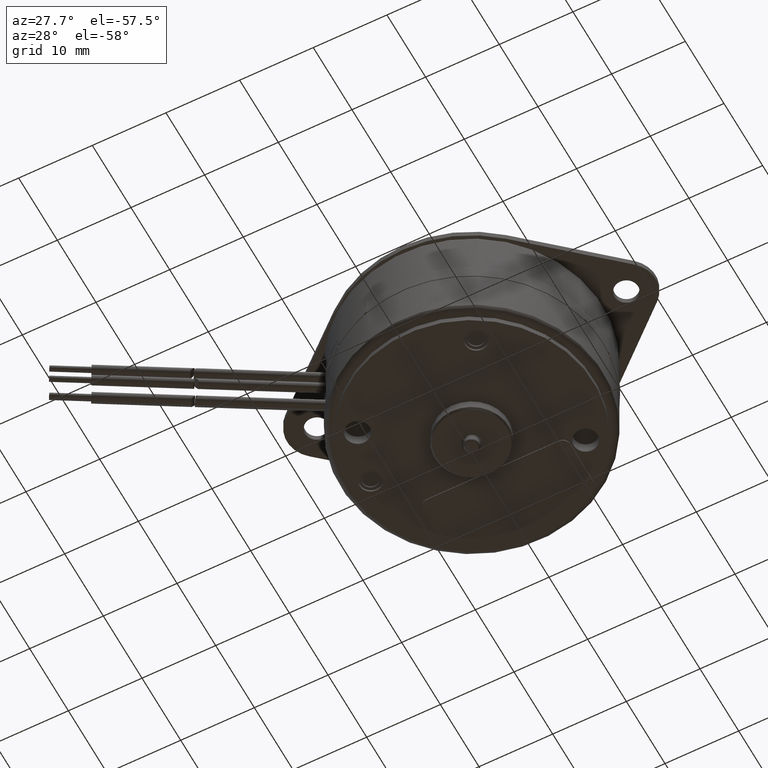
[diagram: clean part render]
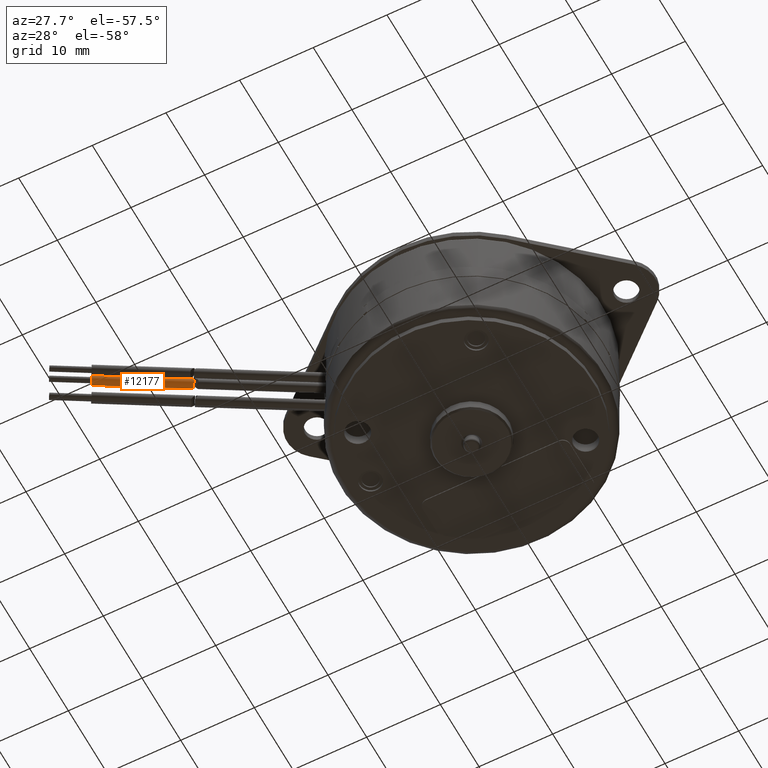
[diagram: same view with one face highlighted and labeled with its STEP entity id]
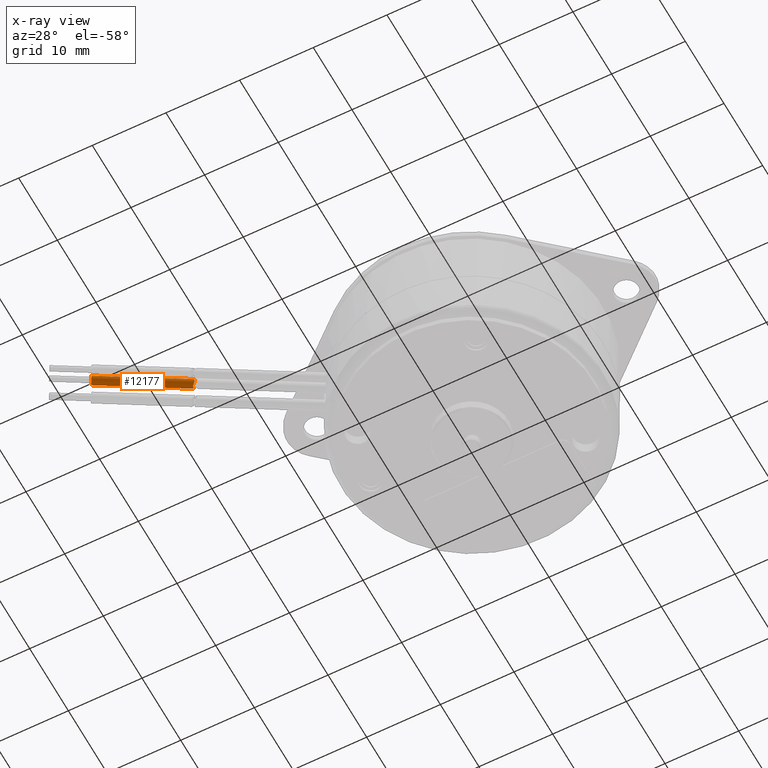
[diagram: x-ray of the same camera — body ghosted, the highlighted face saturated]
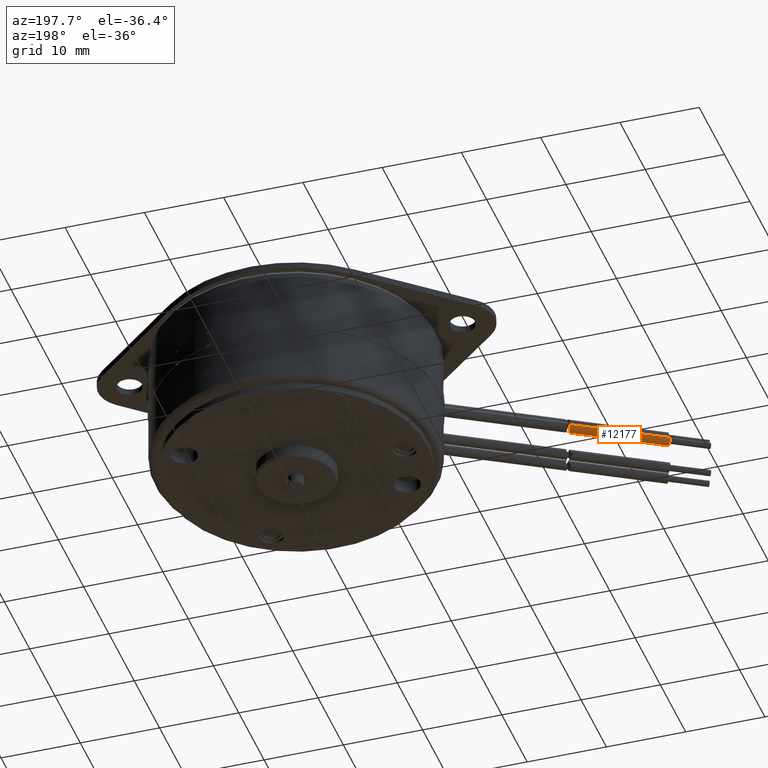
[diagram: same view with one face highlighted and labeled with its STEP entity id]
A machine part, auxiliary view. The second image highlights one B-rep face of the part: STEP entity #12177.
The next image is the same camera in x-ray: the body ghosted, the highlighted face saturated — about 0% of this face is hidden behind the body in this view.
A second angle (auxiliary view) of the same face is appended — the face is thin or edge-on in the first view.
In plain terms, the highlighted cylindrical surface (edge-blend (fillet) strip) has radius 0.635 mm, axis along (0.866, 0.5, 0).
Its self-contained STEP definition (entity closure, byte-faithful):
#11980=CARTESIAN_POINT('',(-1.574845726812E0,-8.722871870790E-1,8.E-2));
#11981=DIRECTION('',(8.660254037844E-1,5.E-1,0.E0));
#11982=DIRECTION('',(5.E-1,-8.660254037844E-1,0.E0));
#11983=AXIS2_PLACEMENT_3D('',#11980,#11981,#11982);
#11995=DIRECTION('',(8.660254090818E-1,4.999999907318E-1,-9.634992567196E-6));
#11996=VECTOR('',#11995,4.846703954332E-1);
#11997=CARTESIAN_POINT('',(-1.587345726258E0,-8.506365529432E-1,
7.999392530138E-2));
#11998=LINE('',#11997,#11996);
#12032=CARTESIAN_POINT('',(-1.142614720842E0,-6.516060069013E-1,
7.998925550445E-2));
#12034=DIRECTION('',(-8.660253995365E-1,-5.000000072649E-1,9.635126355597E-6));
#12035=VECTOR('',#12034,4.846636215850E-1);
#12036=CARTESIAN_POINT('',(-1.142614720842E0,-6.516060069013E-1,
7.998925550445E-2));
#12037=LINE('',#12036,#12035);
#12038=CARTESIAN_POINT('',(-1.167608848783E0,-6.083013597186E-1,
7.998925550572E-2));
#12039=CARTESIAN_POINT('',(-1.167121205933E0,-6.080201314773E-1,
7.924676605733E-2));
#12040=CARTESIAN_POINT('',(-1.166230749679E0,-6.075829310580E-1,
7.781021882939E-2));
#12041=CARTESIAN_POINT('',(-1.165174482928E0,-6.072760001384E-1,
7.580217718599E-2));
#12042=CARTESIAN_POINT('',(-1.164341961272E0,-6.072465598094E-1,
7.394769011116E-2));
#12043=CARTESIAN_POINT('',(-1.163680085429E0,-6.074570086726E-1,
7.217262393653E-2));
#12044=CARTESIAN_POINT('',(-1.163157152198E0,-6.078988278711E-1,
7.043360286272E-2));
#12045=CARTESIAN_POINT('',(-1.162751199284E0,-6.085914282892E-1,
6.868047226496E-2));
#12046=CARTESIAN_POINT('',(-1.162449278503E0,-6.095843629989E-1,
6.686522185302E-2));
#12047=CARTESIAN_POINT('',(-1.162243671469E0,-6.109683465297E-1,
6.494471148440E-2));
#12048=CARTESIAN_POINT('',(-1.162119582207E0,-6.128047629443E-1,
6.295109306300E-2));
#12049=CARTESIAN_POINT('',(-1.162023254286E0,-6.152247838305E-1,
6.088386119875E-2));
#12050=CARTESIAN_POINT('',(-1.161850860814E0,-6.180119538543E-1,
5.902302301249E-2));
#12051=CARTESIAN_POINT('',(-1.161531727629E0,-6.207139880364E-1,
5.759728590745E-2));
#12052=CARTESIAN_POINT('',(-1.161033450562E0,-6.233304124158E-1,
5.651050414707E-2));
#12053=CARTESIAN_POINT('',(-1.160348672459E0,-6.258223196329E-1,
5.573470004021E-2));
#12054=CARTESIAN_POINT('',(-1.159478132060E0,-6.281928313763E-1,
5.523415824201E-2));
#12055=CARTESIAN_POINT('',(-1.158424185469E0,-6.304454531062E-1,
5.498941701509E-2));
#12056=CARTESIAN_POINT('',(-1.157186472004E0,-6.325880531576E-1,
5.499009217703E-2));
#12057=CARTESIAN_POINT('',(-1.155761510083E0,-6.346265987378E-1,
5.523623499771E-2));
#12058=CARTESIAN_POINT('',(-1.154142836753E0,-6.365651307811E-1,
5.573822082937E-2));
#12059=CARTESIAN_POINT('',(-1.152325818615E0,-6.384037860086E-1,
5.651574140719E-2));
#12060=CARTESIAN_POINT('',(-1.150308463692E0,-6.401424933292E-1,
5.760418250265E-2));
#12061=CARTESIAN_POINT('',(-1.148127375732E0,-6.417693302878E-1,
5.903151494600E-2));
#12062=CARTESIAN_POINT('',(-1.145792309319E0,-6.433161783766E-1,
6.090090491078E-2));
#12063=CARTESIAN_POINT('',(-1.143745942217E0,-6.446088252013E-1,
6.297227418117E-2));
#12064=CARTESIAN_POINT('',(-1.142225371652E0,-6.456304098884E-1,
6.496086416231E-2));
#12065=CARTESIAN_POINT('',(-1.141132209572E0,-6.464999743727E-1,
6.688179282117E-2));
#12066=CARTESIAN_POINT('',(-1.140426580052E0,-6.472569672928E-1,
6.869584275012E-2));
#12067=CARTESIAN_POINT('',(-1.140032161447E0,-6.479545496234E-1,
7.044880427504E-2));
#12068=CARTESIAN_POINT('',(-1.139913358375E0,-6.486283212833E-1,
7.218799751356E-2));
#12069=CARTESIAN_POINT('',(-1.140064499608E0,-6.493068630819E-1,
7.396387130227E-2));
#12070=CARTESIAN_POINT('',(-1.140508879197E0,-6.500133421429E-1,
7.581754809619E-2));
#12071=CARTESIAN_POINT('',(-1.141307106276E0,-6.507761430872E-1,
7.783479546679E-2));
#12072=CARTESIAN_POINT('',(-1.142132657119E0,-6.513273781953E-1,
7.925485332091E-2));
#12073=CARTESIAN_POINT('',(-1.142614720842E0,-6.516060069013E-1,
7.998925550445E-2));
#12087=CARTESIAN_POINT('',(-1.587345726812E0,-8.506365519845E-1,8.E-2));
#12088=CARTESIAN_POINT('',(-1.562345726812E0,-8.939378221735E-1,8.E-2));
#12089=VERTEX_POINT('',#12087);
#12090=VERTEX_POINT('',#12088);
#12091=CARTESIAN_POINT('',(-1.167608848783E0,-6.083013597186E-1,
7.998925550572E-2));
#12092=VERTEX_POINT('',#12091);
#12093=VERTEX_POINT('',#12032);
#12165=CARTESIAN_POINT('',(-1.594451281229E0,-8.836064591993E-1,8.E-2));
#12166=DIRECTION('',(8.660254037844E-1,5.E-1,0.E0));
#12167=DIRECTION('',(-5.E-1,8.660254037844E-1,0.E0));
#12168=AXIS2_PLACEMENT_3D('',#12165,#12166,#12167);
#12169=CYLINDRICAL_SURFACE('',#12168,2.499999999987E-2);
#12171=ORIENTED_EDGE('',*,*,#12170,.F.);
#12172=ORIENTED_EDGE('',*,*,#12155,.F.);
#12173=ORIENTED_EDGE('',*,*,#12141,.F.);
#12174=ORIENTED_EDGE('',*,*,#12159,.F.);
#12175=EDGE_LOOP('',(#12171,#12172,#12173,#12174));
#12176=FACE_OUTER_BOUND('',#12175,.F.);
#12177=ADVANCED_FACE('',(#12176),#12169,.T.);
#11984=CIRCLE('',#11983,2.499999999987E-2);
#12074=B_SPLINE_CURVE_WITH_KNOTS('',3,(#12038,#12039,#12040,#12041,#12042,
#12043,#12044,#12045,#12046,#12047,#12048,#12049,#12050,#12051,#12052,#12053,
#12054,#12055,#12056,#12057,#12058,#12059,#12060,#12061,#12062,#12063,#12064,
#12065,#12066,#12067,#12068,#12069,#12070,#12071,#12072,#12073),.UNSPECIFIED.,
.F.,.F.,(4,1,1,1,1,1,1,1,1,1,1,1,1,1,1,1,1,1,1,1,1,1,1,1,1,1,1,1,1,1,1,1,1,4),(
0.E0,3.030303030303E-2,6.060606060606E-2,9.090909090909E-2,1.212121212121E-1,
1.515151515152E-1,1.818181818182E-1,2.121212121212E-1,2.424242424242E-1,
2.727272727273E-1,3.030303030303E-1,3.333333333333E-1,3.636363636364E-1,
3.939393939394E-1,4.242424242424E-1,4.545454545455E-1,4.848484848485E-1,
5.151515151515E-1,5.454545454545E-1,5.757575757576E-1,6.060606060606E-1,
6.363636363636E-1,6.666666666667E-1,6.969696969697E-1,7.272727272727E-1,
7.575757575758E-1,7.878787878788E-1,8.181818181818E-1,8.484848484848E-1,
8.787878787879E-1,9.090909090909E-1,9.393939393939E-1,9.696969696970E-1,1.E0),
.UNSPECIFIED.);
#12141=EDGE_CURVE('',#12090,#12089,#11984,.T.);
#12155=EDGE_CURVE('',#12089,#12092,#11998,.T.);
#12159=EDGE_CURVE('',#12093,#12090,#12037,.T.);
#12170=EDGE_CURVE('',#12092,#12093,#12074,.T.);